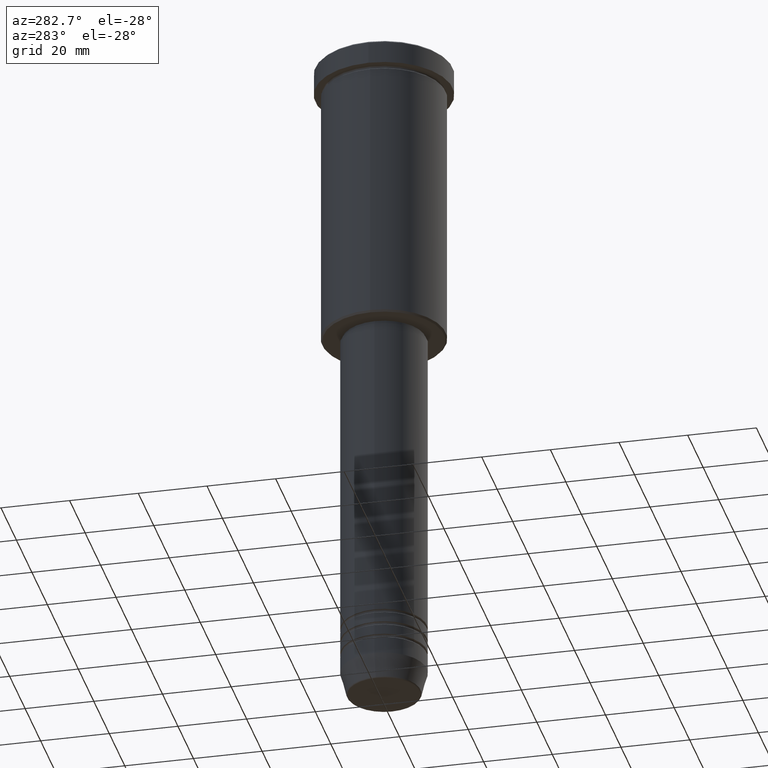
[diagram: clean part render]
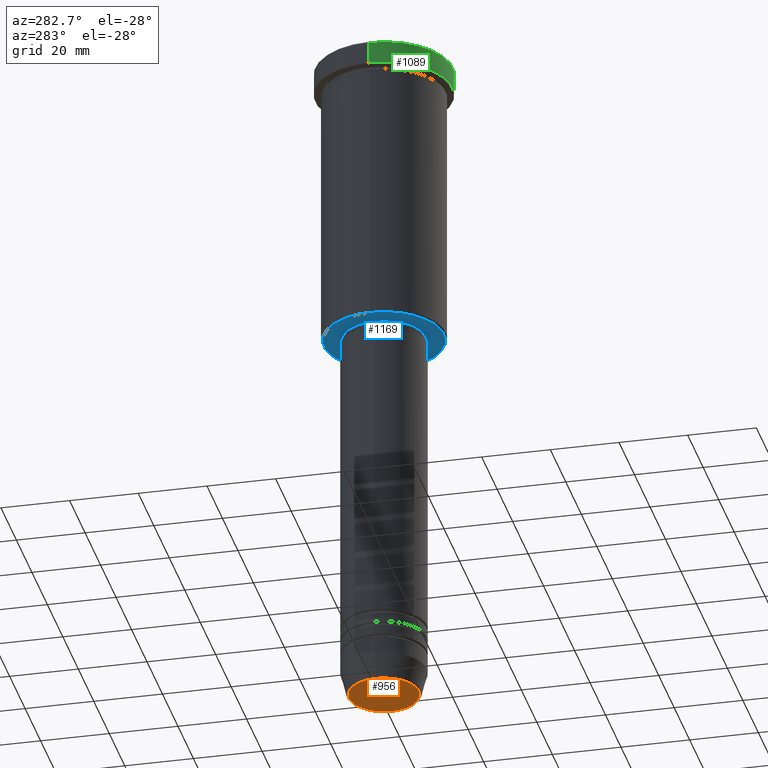
[diagram: same view with three faces highlighted in distinct colors, each labeled with its STEP entity id]
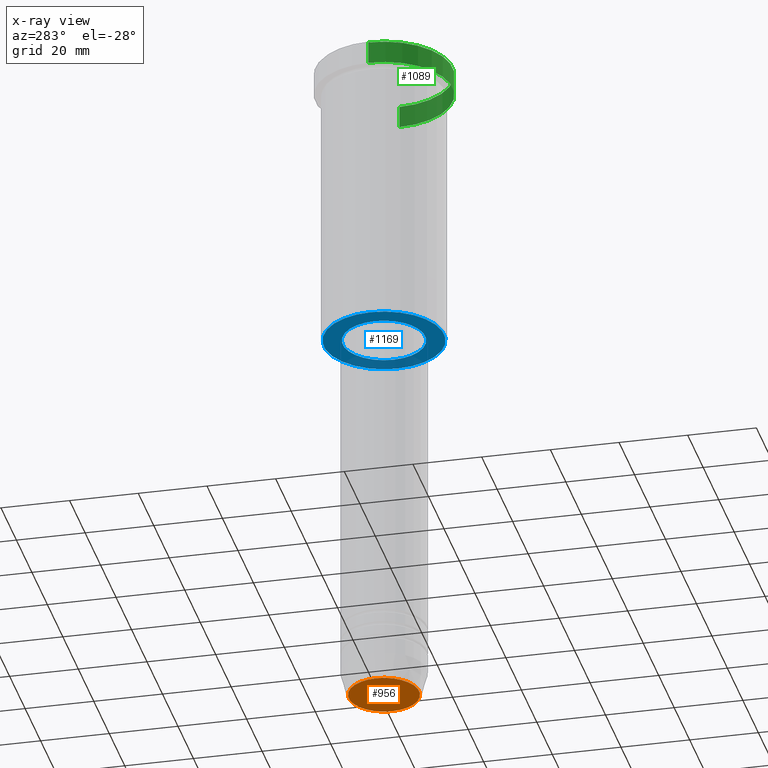
[diagram: x-ray of the same camera — body ghosted, the three highlighted faces saturated]
A machine part, auxiliary view with three faces highlighted in distinct colors.
The next image is the same camera in x-ray (body ghosted, the three faces saturated) — at least one of them is partly hidden behind the body in this view.
Their STEP definitions:

[orange] entity #956 — the highlighted planar face has unit normal (0, -0, 1).
#1 = DIRECTION ( 'NONE',  ( 0.000000000000000000, -0.000000000000000000, 1.000000000000000000 ) ) ;
#97 = AXIS2_PLACEMENT_3D ( 'NONE', #249, #1167, #158 ) ;
#126 = CARTESIAN_POINT ( 'NONE',  ( -10.24069215899266538, 1.283696036640842967E-15, -200.0000000000000000 ) ) ;
#134 = DIRECTION ( 'NONE',  ( 1.000000000000000000, 0.000000000000000000, 0.000000000000000000 ) ) ;
#143 = AXIS2_PLACEMENT_3D ( 'NONE', #896, #1, #801 ) ;
#158 = DIRECTION ( 'NONE',  ( 1.000000000000000000, 0.000000000000000000, 0.000000000000000000 ) ) ;
#249 = CARTESIAN_POINT ( 'NONE',  ( 0.000000000000000000, 0.000000000000000000, -200.0000000000000000 ) ) ;
#253 = VERTEX_POINT ( 'NONE', #651 ) ;
#298 = EDGE_CURVE ( 'NONE', #866, #253, #1063, .T. ) ;
#310 = ORIENTED_EDGE ( 'NONE', *, *, #516, .T. ) ;
#416 = DIRECTION ( 'NONE',  ( 0.000000000000000000, 0.000000000000000000, -1.000000000000000000 ) ) ;
#470 = CIRCLE ( 'NONE', #97, 10.24069215899266538 ) ;
#492 = AXIS2_PLACEMENT_3D ( 'NONE', #777, #416, #134 ) ;
#516 = EDGE_CURVE ( 'NONE', #253, #866, #470, .T. ) ;
#651 = CARTESIAN_POINT ( 'NONE',  ( 10.24069215899266538, 0.000000000000000000, -200.0000000000000000 ) ) ;
#777 = CARTESIAN_POINT ( 'NONE',  ( 0.000000000000000000, 0.000000000000000000, -200.0000000000000000 ) ) ;
#801 = DIRECTION ( 'NONE',  ( 1.000000000000000000, 0.000000000000000000, 0.000000000000000000 ) ) ;
#815 = PLANE ( 'NONE',  #143 ) ;
#866 = VERTEX_POINT ( 'NONE', #126 ) ;
#896 = CARTESIAN_POINT ( 'NONE',  ( 0.000000000000000000, 0.000000000000000000, -200.0000000000000000 ) ) ;
#956 = ADVANCED_FACE ( 'NONE', ( #1098 ), #815, .F. ) ;
#1063 = CIRCLE ( 'NONE', #492, 10.24069215899266538 ) ;
#1092 = EDGE_LOOP ( 'NONE', ( #310, #1138 ) ) ;
#1098 = FACE_OUTER_BOUND ( 'NONE', #1092, .T. ) ;
#1138 = ORIENTED_EDGE ( 'NONE', *, *, #298, .T. ) ;
#1167 = DIRECTION ( 'NONE',  ( 0.000000000000000000, 0.000000000000000000, -1.000000000000000000 ) ) ;

[blue] entity #1169 — the highlighted planar face has unit normal (0, 0, -1).
#2 = DIRECTION ( 'NONE',  ( -1.000000000000000000, 0.000000000000000000, 0.000000000000000000 ) ) ;
#41 = DIRECTION ( 'NONE',  ( 0.000000000000000000, 0.000000000000000000, -1.000000000000000000 ) ) ;
#88 = CARTESIAN_POINT ( 'NONE',  ( 0.000000000000000000, 0.000000000000000000, -86.00000000000000000 ) ) ;
#122 = CIRCLE ( 'NONE', #1031, 12.00000000000000000 ) ;
#125 = CARTESIAN_POINT ( 'NONE',  ( 0.000000000000000000, 18.00000000000000000, -86.00000000000000000 ) ) ;
#231 = EDGE_CURVE ( 'NONE', #868, #989, #1102, .T. ) ;
#233 = EDGE_LOOP ( 'NONE', ( #792, #984 ) ) ;
#247 = CARTESIAN_POINT ( 'NONE',  ( 12.00000000000000000, 0.000000000000000000, -86.00000000000000000 ) ) ;
#266 = CARTESIAN_POINT ( 'NONE',  ( -12.00000000000000000, 1.469576158976823947E-15, -86.00000000000000000 ) ) ;
#294 = VERTEX_POINT ( 'NONE', #688 ) ;
#338 = VERTEX_POINT ( 'NONE', #878 ) ;
#353 = CARTESIAN_POINT ( 'NONE',  ( 0.000000000000000000, 0.000000000000000000, -86.00000000000000000 ) ) ;
#394 = FACE_BOUND ( 'NONE', #1017, .T. ) ;
#435 = EDGE_CURVE ( 'NONE', #338, #294, #552, .T. ) ;
#448 = DIRECTION ( 'NONE',  ( 0.000000000000000000, 0.000000000000000000, -1.000000000000000000 ) ) ;
#499 = DIRECTION ( 'NONE',  ( -1.000000000000000000, 0.000000000000000000, -0.000000000000000000 ) ) ;
#552 = CIRCLE ( 'NONE', #1041, 17.49999999999998934 ) ;
#558 = EDGE_CURVE ( 'NONE', #294, #338, #1003, .T. ) ;
#574 = ORIENTED_EDGE ( 'NONE', *, *, #231, .T. ) ;
#579 = DIRECTION ( 'NONE',  ( 1.000000000000000000, 0.000000000000000000, 0.000000000000000000 ) ) ;
#645 = DIRECTION ( 'NONE',  ( 1.000000000000000000, 0.000000000000000000, 0.000000000000000000 ) ) ;
#688 = CARTESIAN_POINT ( 'NONE',  ( 17.49999999999998934, 0.000000000000000000, -86.00000000000000000 ) ) ;
#757 = CARTESIAN_POINT ( 'NONE',  ( 0.000000000000000000, 0.000000000000000000, -86.00000000000000000 ) ) ;
#776 = DIRECTION ( 'NONE',  ( -0.000000000000000000, -0.000000000000000000, 1.000000000000000000 ) ) ;
#792 = ORIENTED_EDGE ( 'NONE', *, *, #558, .T. ) ;
#799 = EDGE_CURVE ( 'NONE', #989, #868, #122, .T. ) ;
#802 = DIRECTION ( 'NONE',  ( 0.000000000000000000, 0.000000000000000000, -1.000000000000000000 ) ) ;
#844 = ORIENTED_EDGE ( 'NONE', *, *, #799, .T. ) ;
#849 = FACE_OUTER_BOUND ( 'NONE', #233, .T. ) ;
#868 = VERTEX_POINT ( 'NONE', #247 ) ;
#878 = CARTESIAN_POINT ( 'NONE',  ( -17.49999999999998934, 2.173748068486550852E-15, -86.00000000000000000 ) ) ;
#923 = AXIS2_PLACEMENT_3D ( 'NONE', #757, #1132, #645 ) ;
#952 = PLANE ( 'NONE',  #1183 ) ;
#984 = ORIENTED_EDGE ( 'NONE', *, *, #435, .T. ) ;
#989 = VERTEX_POINT ( 'NONE', #266 ) ;
#990 = DIRECTION ( 'NONE',  ( -1.000000000000000000, 0.000000000000000000, 0.000000000000000000 ) ) ;
#1003 = CIRCLE ( 'NONE', #1103, 17.49999999999998934 ) ;
#1017 = EDGE_LOOP ( 'NONE', ( #574, #844 ) ) ;
#1031 = AXIS2_PLACEMENT_3D ( 'NONE', #1068, #776, #579 ) ;
#1041 = AXIS2_PLACEMENT_3D ( 'NONE', #353, #802, #990 ) ;
#1068 = CARTESIAN_POINT ( 'NONE',  ( 0.000000000000000000, 0.000000000000000000, -86.00000000000000000 ) ) ;
#1102 = CIRCLE ( 'NONE', #923, 12.00000000000000000 ) ;
#1103 = AXIS2_PLACEMENT_3D ( 'NONE', #88, #448, #2 ) ;
#1132 = DIRECTION ( 'NONE',  ( -0.000000000000000000, -0.000000000000000000, 1.000000000000000000 ) ) ;
#1169 = ADVANCED_FACE ( 'NONE', ( #849, #394 ), #952, .T. ) ;
#1183 = AXIS2_PLACEMENT_3D ( 'NONE', #125, #41, #499 ) ;

[green] entity #1089 — the highlighted cylindrical surface (partial cylindrical patch) has radius 20 mm, axis along (-0, -0, 1).
#11 = CARTESIAN_POINT ( 'NONE',  ( 0.000000000000000000, 0.000000000000000000, 0.000000000000000000 ) ) ;
#18 = LINE ( 'NONE', #837, #1130 ) ;
#57 = DIRECTION ( 'NONE',  ( 1.000000000000000000, 0.000000000000000000, 0.000000000000000000 ) ) ;
#71 = AXIS2_PLACEMENT_3D ( 'NONE', #876, #1073, #687 ) ;
#92 = DIRECTION ( 'NONE',  ( 1.000000000000000000, 0.000000000000000000, 0.000000000000000000 ) ) ;
#135 = EDGE_LOOP ( 'NONE', ( #991, #690, #773, #496 ) ) ;
#138 = DIRECTION ( 'NONE',  ( -0.000000000000000000, -0.000000000000000000, 1.000000000000000000 ) ) ;
#139 = CARTESIAN_POINT ( 'NONE',  ( 0.000000000000000000, 0.000000000000000000, -0.4999999999999970024 ) ) ;
#145 = LINE ( 'NONE', #307, #162 ) ;
#162 = VECTOR ( 'NONE', #138, 1000.000000000000000 ) ;
#283 = AXIS2_PLACEMENT_3D ( 'NONE', #11, #728, #92 ) ;
#307 = CARTESIAN_POINT ( 'NONE',  ( -20.00000000000000000, 2.449293598294706513E-15, 0.000000000000000000 ) ) ;
#378 = CIRCLE ( 'NONE', #454, 20.00000000000000000 ) ;
#382 = EDGE_CURVE ( 'NONE', #1163, #1049, #378, .T. ) ;
#454 = AXIS2_PLACEMENT_3D ( 'NONE', #139, #501, #57 ) ;
#466 = FACE_OUTER_BOUND ( 'NONE', #135, .T. ) ;
#496 = ORIENTED_EDGE ( 'NONE', *, *, #382, .T. ) ;
#501 = DIRECTION ( 'NONE',  ( 0.000000000000000000, 0.000000000000000000, -1.000000000000000000 ) ) ;
#560 = CARTESIAN_POINT ( 'NONE',  ( -20.00000000000000000, 2.449293598294706513E-15, -0.4999999999999970024 ) ) ;
#670 = CARTESIAN_POINT ( 'NONE',  ( 20.00000000000000000, 0.000000000000000000, -6.999999999999995559 ) ) ;
#687 = DIRECTION ( 'NONE',  ( 1.000000000000000000, 0.000000000000000000, 0.000000000000000000 ) ) ;
#690 = ORIENTED_EDGE ( 'NONE', *, *, #717, .T. ) ;
#717 = EDGE_CURVE ( 'NONE', #1018, #861, #1114, .T. ) ;
#728 = DIRECTION ( 'NONE',  ( -0.000000000000000000, -0.000000000000000000, 1.000000000000000000 ) ) ;
#739 = DIRECTION ( 'NONE',  ( -0.000000000000000000, -0.000000000000000000, 1.000000000000000000 ) ) ;
#773 = ORIENTED_EDGE ( 'NONE', *, *, #1120, .T. ) ;
#825 = EDGE_CURVE ( 'NONE', #1018, #1049, #145, .T. ) ;
#837 = CARTESIAN_POINT ( 'NONE',  ( 20.00000000000000000, 0.000000000000000000, 0.000000000000000000 ) ) ;
#861 = VERTEX_POINT ( 'NONE', #670 ) ;
#876 = CARTESIAN_POINT ( 'NONE',  ( 0.000000000000000000, 0.000000000000000000, -6.999999999999995559 ) ) ;
#936 = CARTESIAN_POINT ( 'NONE',  ( -20.00000000000000000, 2.449293598294706513E-15, -6.999999999999995559 ) ) ;
#991 = ORIENTED_EDGE ( 'NONE', *, *, #825, .F. ) ;
#1009 = CYLINDRICAL_SURFACE ( 'NONE', #283, 20.00000000000000000 ) ;
#1018 = VERTEX_POINT ( 'NONE', #936 ) ;
#1049 = VERTEX_POINT ( 'NONE', #560 ) ;
#1051 = CARTESIAN_POINT ( 'NONE',  ( 20.00000000000000000, 0.000000000000000000, -0.4999999999999970024 ) ) ;
#1073 = DIRECTION ( 'NONE',  ( -0.000000000000000000, -0.000000000000000000, 1.000000000000000000 ) ) ;
#1089 = ADVANCED_FACE ( 'NONE', ( #466 ), #1009, .T. ) ;
#1114 = CIRCLE ( 'NONE', #71, 20.00000000000000000 ) ;
#1120 = EDGE_CURVE ( 'NONE', #861, #1163, #18, .T. ) ;
#1130 = VECTOR ( 'NONE', #739, 1000.000000000000000 ) ;
#1163 = VERTEX_POINT ( 'NONE', #1051 ) ;